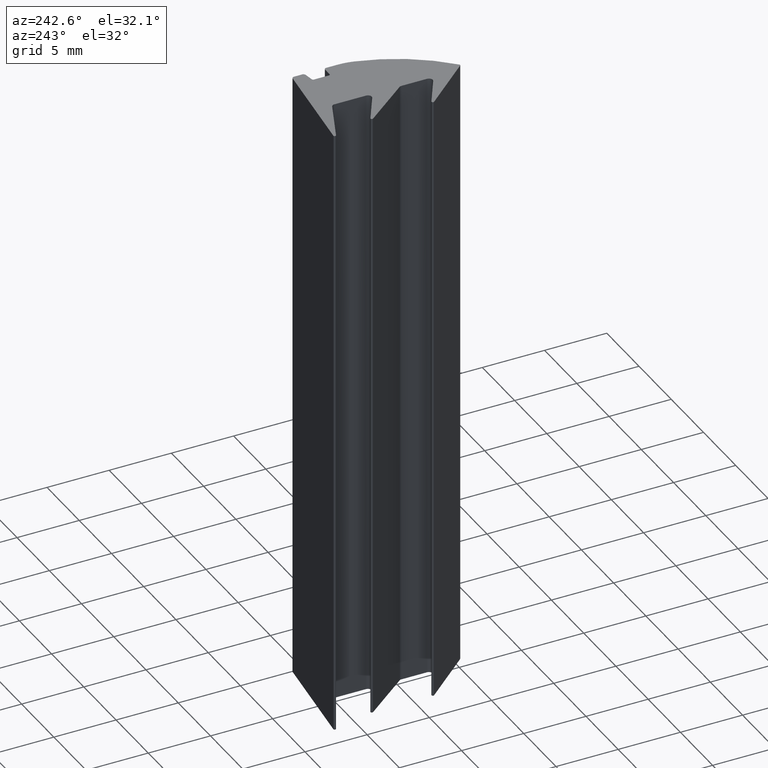
[diagram: clean part render]
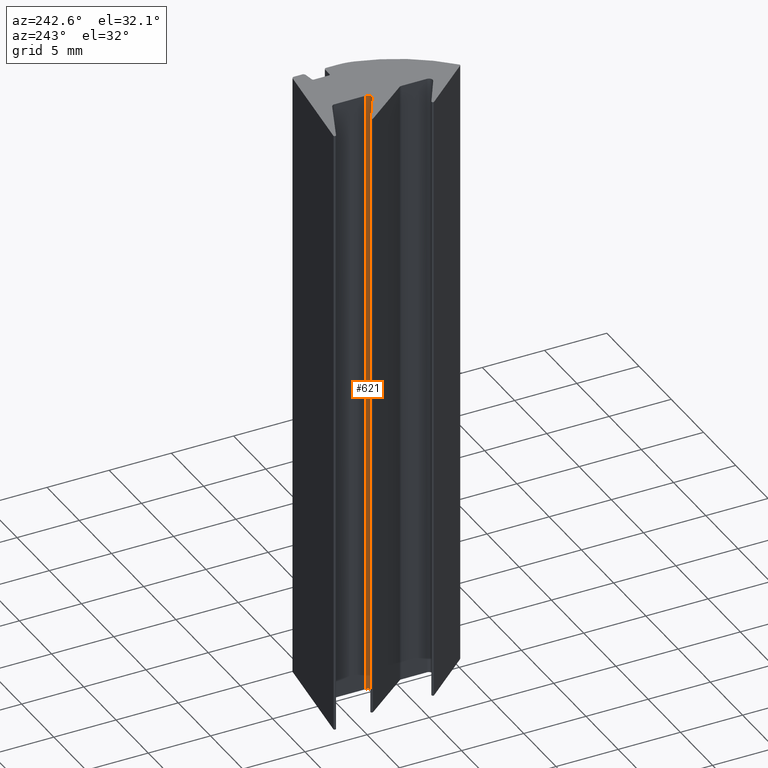
[diagram: same view with one face highlighted and labeled with its STEP entity id]
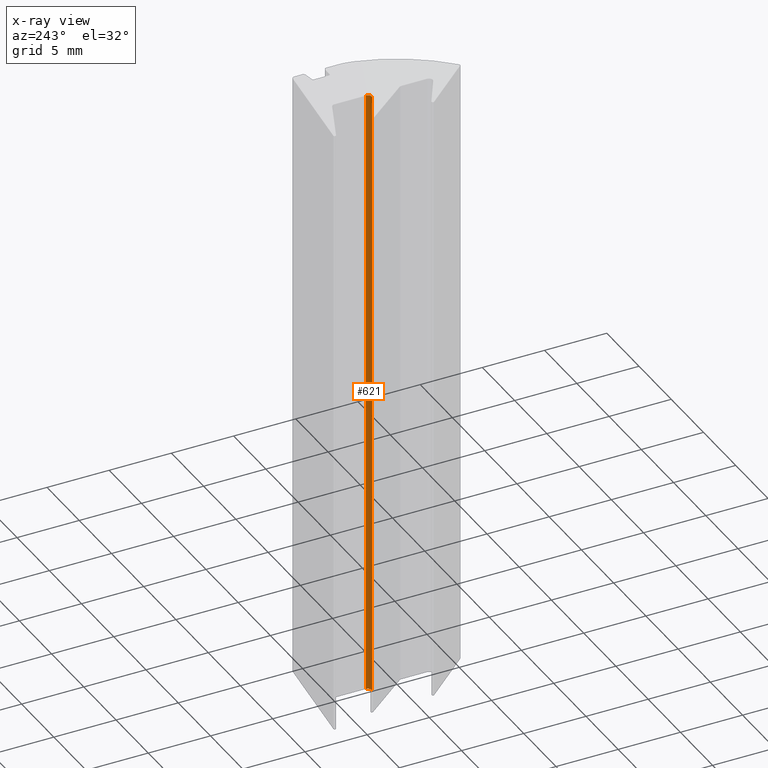
[diagram: x-ray of the same camera — body ghosted, the highlighted face saturated]
A machine part, auxiliary view. The second image highlights one B-rep face of the part: STEP entity #621.
The next image is the same camera in x-ray: the body ghosted, the highlighted face saturated — about 0% of this face is hidden behind the body in this view.
In plain terms, the highlighted cylindrical surface (edge-blend (fillet) strip) has radius 0.3 mm, axis along (0, 0, -1).
Its self-contained STEP definition (entity closure, byte-faithful):
#563=CARTESIAN_POINT('',(-0.640388909993436,7.830457434995225,0.0));
#564=VERTEX_POINT('',#563);
#571=CARTESIAN_POINT('',(-0.640388909993436,7.830457434995225,50.0));
#572=VERTEX_POINT('',#571);
#573=CARTESIAN_POINT('',(-0.640388909993436,7.830457434995225,0.0));
#574=DIRECTION('',(0.0,0.0,1.0));
#575=VECTOR('',#574,50.0);
#576=LINE('',#573,#575);
#577=EDGE_CURVE('',#564,#572,#576,.T.);
#589=CARTESIAN_POINT('',(-0.940388909992235,7.830457434995225,0.0));
#590=DIRECTION('',(0.0,0.0,-1.0));
#591=DIRECTION('',(1.0,1.665335E-016,0.0));
#592=AXIS2_PLACEMENT_3D('',#589,#590,#591);
#593=CYLINDRICAL_SURFACE('',#592,0.299999999998798);
#594=CARTESIAN_POINT('',(-1.090388909991648,7.570649813860942,0.0));
#595=VERTEX_POINT('',#594);
#596=CARTESIAN_POINT('',(-0.940388909992234,7.830457434995225,0.0));
#597=DIRECTION('',(0.0,0.0,-1.0));
#598=DIRECTION('',(-0.500000000000046,-0.866025403784412,0.0));
#599=AXIS2_PLACEMENT_3D('',#596,#597,#598);
#600=CIRCLE('',#599,0.299999999998798);
#601=EDGE_CURVE('',#564,#595,#600,.T.);
#602=ORIENTED_EDGE('',*,*,#601,.T.);
#603=CARTESIAN_POINT('',(-1.090388909991648,7.570649813860942,50.0));
#604=VERTEX_POINT('',#603);
#605=CARTESIAN_POINT('',(-1.090388909991648,7.570649813860942,0.0));
#606=DIRECTION('',(0.0,0.0,1.0));
#607=VECTOR('',#606,50.0);
#608=LINE('',#605,#607);
#609=EDGE_CURVE('',#595,#604,#608,.T.);
#610=ORIENTED_EDGE('',*,*,#609,.T.);
#611=CARTESIAN_POINT('',(-0.940388909992234,7.830457434995225,50.0));
#612=DIRECTION('',(0.0,0.0,-1.0));
#613=DIRECTION('',(-0.500000000000046,-0.866025403784412,0.0));
#614=AXIS2_PLACEMENT_3D('',#611,#612,#613);
#615=CIRCLE('',#614,0.299999999998798);
#616=EDGE_CURVE('',#572,#604,#615,.T.);
#617=ORIENTED_EDGE('',*,*,#616,.F.);
#618=ORIENTED_EDGE('',*,*,#577,.F.);
#619=EDGE_LOOP('',(#602,#610,#617,#618));
#620=FACE_OUTER_BOUND('',#619,.T.);
#621=ADVANCED_FACE('',(#620),#593,.F.);